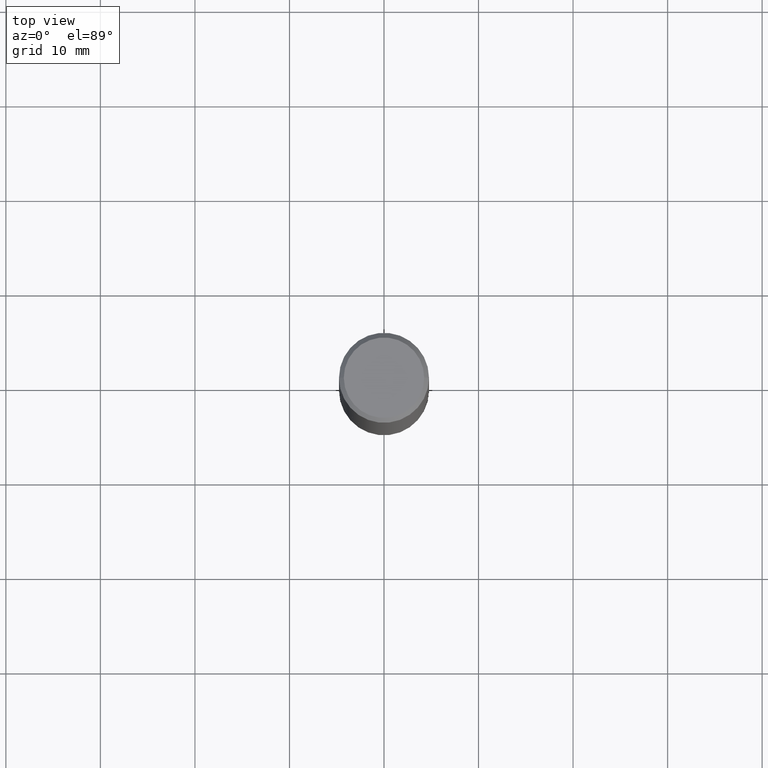
[diagram: clean part render]
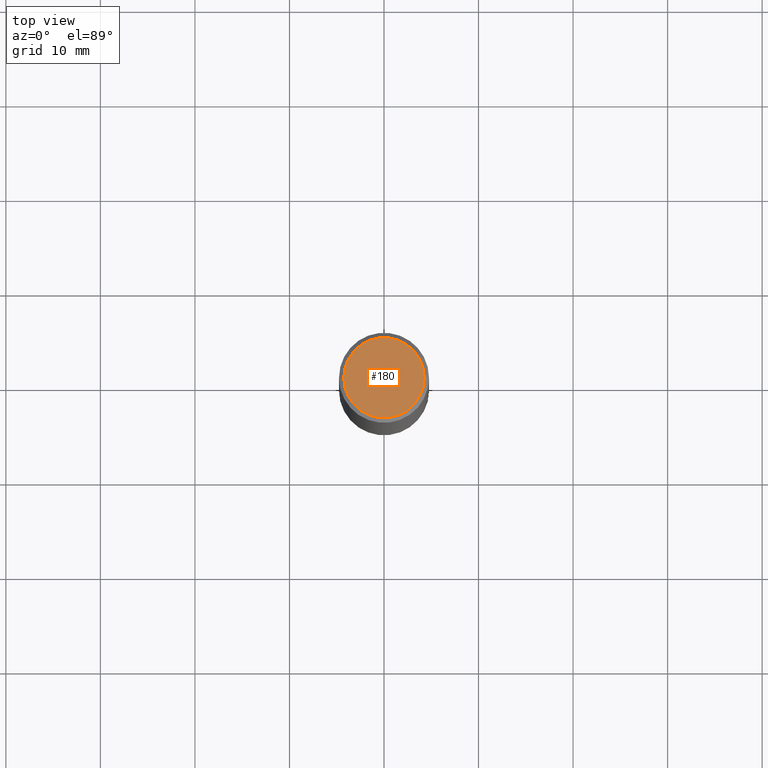
[diagram: same view with one face highlighted and labeled with its STEP entity id]
A machine part, top view. The second image highlights one B-rep face of the part: STEP entity #180.
In plain terms, the highlighted planar face has unit normal (0, -0, -1).
Its self-contained STEP definition (entity closure, byte-faithful):
#12 = CARTESIAN_POINT ( 'NONE',  ( 0.000000000000000000, 0.000000000000000000, 0.000000000000000000 ) ) ;
#13 = EDGE_CURVE ( 'NONE', #202, #232, #47, .T. ) ;
#29 = ORIENTED_EDGE ( 'NONE', *, *, #13, .T. ) ;
#47 = CIRCLE ( 'NONE', #88, 0.1674999999999997879 ) ;
#77 = CARTESIAN_POINT ( 'NONE',  ( 1.169646248512448215E-15, 0.1674999999999997879, -5.848231242562260795E-16 ) ) ;
#88 = AXIS2_PLACEMENT_3D ( 'NONE', #209, #151, #91 ) ;
#91 = DIRECTION ( 'NONE',  ( 1.000000000000000000, -6.982962677686266711E-15, 4.876176775795935793E-29 ) ) ;
#108 = PLANE ( 'NONE',  #130 ) ;
#115 = ORIENTED_EDGE ( 'NONE', *, *, #347, .T. ) ;
#130 = AXIS2_PLACEMENT_3D ( 'NONE', #77, #224, #343 ) ;
#151 = DIRECTION ( 'NONE',  ( -2.445468806185136597E-29, 3.491481338843145583E-15, 1.000000000000000000 ) ) ;
#160 = CARTESIAN_POINT ( 'NONE',  ( -0.1674999999999997879, 1.204561061900879272E-15, -8.301862719484101980E-30 ) ) ;
#164 = CARTESIAN_POINT ( 'NONE',  ( 0.1674999999999997879, -1.252653207992876908E-15, 8.469775550109228175E-30 ) ) ;
#169 = CIRCLE ( 'NONE', #383, 0.1674999999999997879 ) ;
#180 = ADVANCED_FACE ( 'NONE', ( #249 ), #108, .F. ) ;
#202 = VERTEX_POINT ( 'NONE', #164 ) ;
#209 = CARTESIAN_POINT ( 'NONE',  ( 0.000000000000000000, 0.000000000000000000, 0.000000000000000000 ) ) ;
#224 = DIRECTION ( 'NONE',  ( 2.438088387897960049E-29, -3.491481338843145188E-15, -1.000000000000000000 ) ) ;
#232 = VERTEX_POINT ( 'NONE', #160 ) ;
#249 = FACE_OUTER_BOUND ( 'NONE', #386, .T. ) ;
#251 = DIRECTION ( 'NONE',  ( 1.000000000000000000, -6.982962677686266711E-15, 4.876176775795935793E-29 ) ) ;
#282 = DIRECTION ( 'NONE',  ( -2.445468806185136597E-29, 3.491481338843145583E-15, 1.000000000000000000 ) ) ;
#343 = DIRECTION ( 'NONE',  ( -1.000000000000000000, 6.982962677686265922E-15, -4.876176775795935793E-29 ) ) ;
#347 = EDGE_CURVE ( 'NONE', #232, #202, #169, .T. ) ;
#383 = AXIS2_PLACEMENT_3D ( 'NONE', #12, #282, #251 ) ;
#386 = EDGE_LOOP ( 'NONE', ( #115, #29 ) ) ;